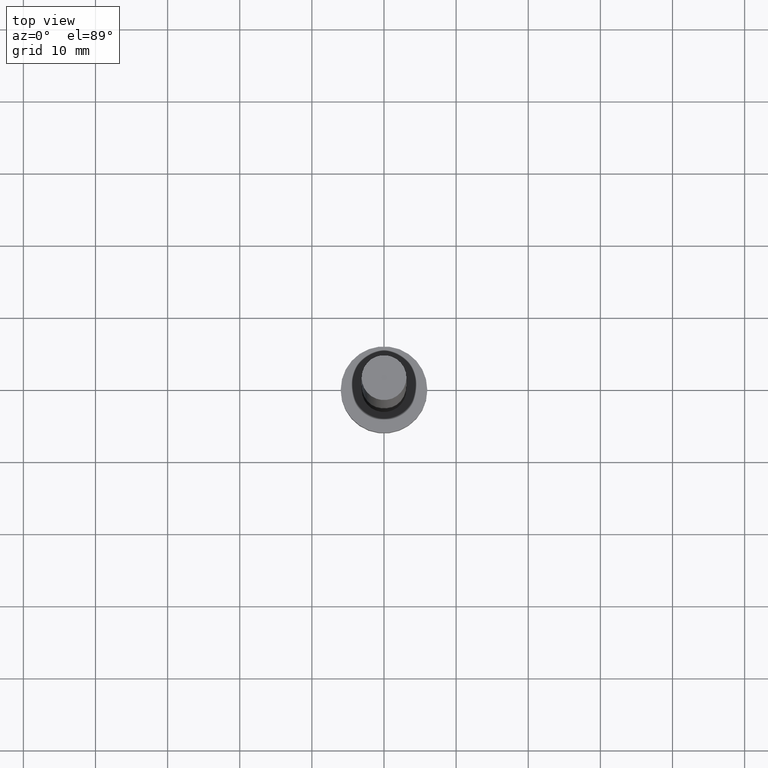
[diagram: clean part render]
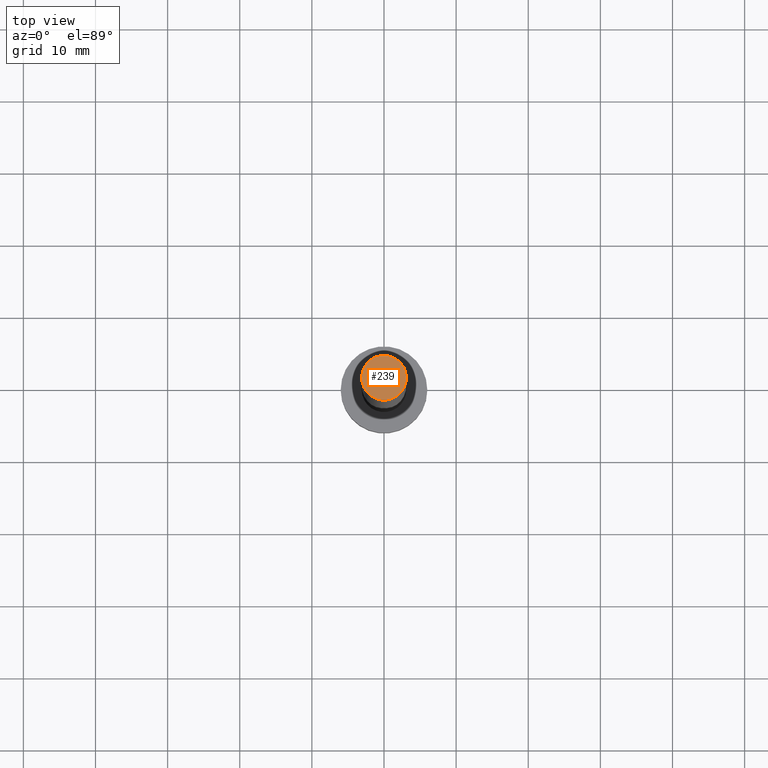
[diagram: same view with one face highlighted and labeled with its STEP entity id]
A machine part, top view. The second image highlights one B-rep face of the part: STEP entity #239.
In plain terms, the highlighted planar face has unit normal (0, 0, 1).
Its self-contained STEP definition (entity closure, byte-faithful):
#1 = VERTEX_POINT ( 'NONE', #127 ) ;
#21 = CARTESIAN_POINT ( 'NONE',  ( -3.100000000000000089, 0.000000000000000000, 100.0000000000000000 ) ) ;
#28 = DIRECTION ( 'NONE',  ( 1.000000000000000000, 0.000000000000000000, 0.000000000000000000 ) ) ;
#35 = DIRECTION ( 'NONE',  ( 1.000000000000000000, 0.000000000000000000, -0.000000000000000000 ) ) ;
#36 = DIRECTION ( 'NONE',  ( 1.000000000000000000, 0.000000000000000000, 0.000000000000000000 ) ) ;
#38 = DIRECTION ( 'NONE',  ( 0.000000000000000000, 0.000000000000000000, 1.000000000000000000 ) ) ;
#43 = EDGE_CURVE ( 'NONE', #1, #182, #77, .T. ) ;
#47 = AXIS2_PLACEMENT_3D ( 'NONE', #174, #38, #35 ) ;
#55 = PLANE ( 'NONE',  #47 ) ;
#74 = ORIENTED_EDGE ( 'NONE', *, *, #232, .T. ) ;
#77 = CIRCLE ( 'NONE', #214, 3.100000000000000089 ) ;
#79 = AXIS2_PLACEMENT_3D ( 'NONE', #176, #134, #36 ) ;
#92 = ORIENTED_EDGE ( 'NONE', *, *, #43, .T. ) ;
#127 = CARTESIAN_POINT ( 'NONE',  ( 3.100000000000000089, 3.796405077356794918E-16, 100.0000000000000000 ) ) ;
#134 = DIRECTION ( 'NONE',  ( 0.000000000000000000, 0.000000000000000000, 1.000000000000000000 ) ) ;
#135 = CIRCLE ( 'NONE', #79, 3.100000000000000089 ) ;
#147 = DIRECTION ( 'NONE',  ( 0.000000000000000000, 0.000000000000000000, 1.000000000000000000 ) ) ;
#157 = FACE_OUTER_BOUND ( 'NONE', #227, .T. ) ;
#174 = CARTESIAN_POINT ( 'NONE',  ( 0.000000000000000000, 0.000000000000000000, 100.0000000000000000 ) ) ;
#176 = CARTESIAN_POINT ( 'NONE',  ( 0.000000000000000000, 0.000000000000000000, 100.0000000000000000 ) ) ;
#182 = VERTEX_POINT ( 'NONE', #21 ) ;
#204 = CARTESIAN_POINT ( 'NONE',  ( 0.000000000000000000, 0.000000000000000000, 100.0000000000000000 ) ) ;
#214 = AXIS2_PLACEMENT_3D ( 'NONE', #204, #147, #28 ) ;
#227 = EDGE_LOOP ( 'NONE', ( #74, #92 ) ) ;
#232 = EDGE_CURVE ( 'NONE', #182, #1, #135, .T. ) ;
#239 = ADVANCED_FACE ( 'NONE', ( #157 ), #55, .T. ) ;